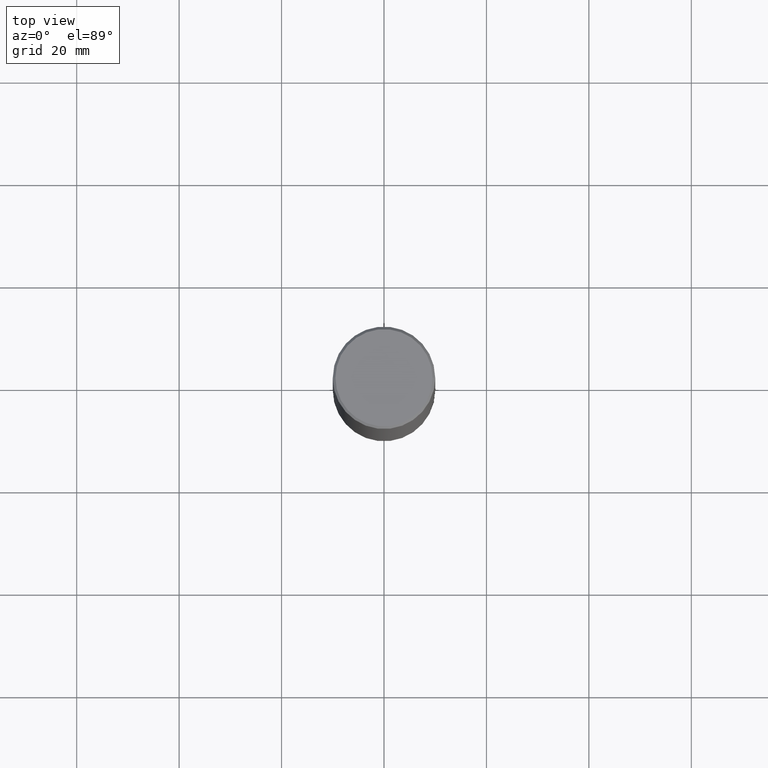
[diagram: clean part render]
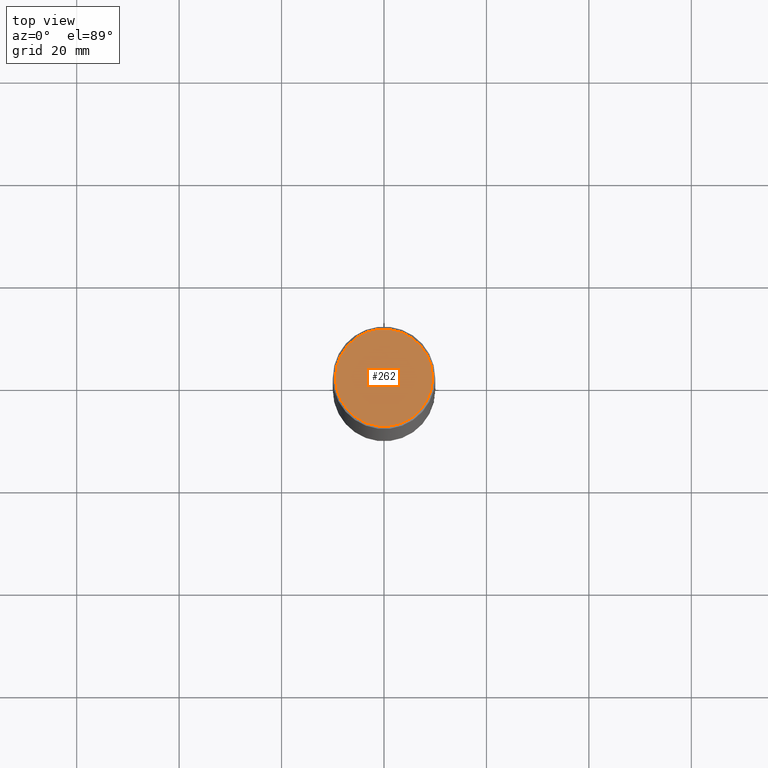
[diagram: same view with one face highlighted and labeled with its STEP entity id]
A machine part, top view. The second image highlights one B-rep face of the part: STEP entity #262.
In plain terms, the highlighted planar face has unit normal (0, -0, -1).
Its self-contained STEP definition (entity closure, byte-faithful):
#26 = FACE_OUTER_BOUND ( 'NONE', #34, .T. ) ;
#34 = EDGE_LOOP ( 'NONE', ( #141, #226 ) ) ;
#39 = VERTEX_POINT ( 'NONE', #360 ) ;
#46 = CARTESIAN_POINT ( 'NONE',  ( -0.3736999999999999211, 2.644447966039789453E-15, 2.262311619753034352E-16 ) ) ;
#85 = CARTESIAN_POINT ( 'NONE',  ( -5.532412495976664402E-45, 7.898818803016371119E-31, 2.262311619753217762E-16 ) ) ;
#93 = CIRCLE ( 'NONE', #108, 0.3736999999999999211 ) ;
#102 = AXIS2_PLACEMENT_3D ( 'NONE', #189, #287, #313 ) ;
#108 = AXIS2_PLACEMENT_3D ( 'NONE', #181, #248, #379 ) ;
#115 = DIRECTION ( 'NONE',  ( -2.445468806185136597E-29, 3.491481338843145583E-15, 1.000000000000000000 ) ) ;
#141 = ORIENTED_EDGE ( 'NONE', *, *, #237, .T. ) ;
#152 = DIRECTION ( 'NONE',  ( 1.000000000000000000, -6.982962677686266711E-15, 4.877734241229876808E-29 ) ) ;
#181 = CARTESIAN_POINT ( 'NONE',  ( -5.532412495976664402E-45, 7.898818803016371119E-31, 2.262311619753217762E-16 ) ) ;
#189 = CARTESIAN_POINT ( 'NONE',  ( 2.609533152651356620E-15, 0.3736999999999999211, -1.191650995338022328E-15 ) ) ;
#222 = PLANE ( 'NONE',  #102 ) ;
#226 = ORIENTED_EDGE ( 'NONE', *, *, #399, .T. ) ;
#231 = CIRCLE ( 'NONE', #386, 0.3736999999999999211 ) ;
#237 = EDGE_CURVE ( 'NONE', #397, #39, #231, .T. ) ;
#248 = DIRECTION ( 'NONE',  ( -2.445468806185136597E-29, 3.491481338843145583E-15, 1.000000000000000000 ) ) ;
#262 = ADVANCED_FACE ( 'NONE', ( #26 ), #222, .F. ) ;
#287 = DIRECTION ( 'NONE',  ( 2.438088387897960049E-29, -3.491481338843145188E-15, -1.000000000000000000 ) ) ;
#313 = DIRECTION ( 'NONE',  ( -1.000000000000000000, 6.982962677686265922E-15, -4.876176775795935793E-29 ) ) ;
#360 = CARTESIAN_POINT ( 'NONE',  ( 0.3736999999999999211, -2.667287895133367964E-15, 2.262311619753402158E-16 ) ) ;
#379 = DIRECTION ( 'NONE',  ( 1.000000000000000000, -6.982962677686266711E-15, 4.877734241229876808E-29 ) ) ;
#386 = AXIS2_PLACEMENT_3D ( 'NONE', #85, #115, #152 ) ;
#397 = VERTEX_POINT ( 'NONE', #46 ) ;
#399 = EDGE_CURVE ( 'NONE', #39, #397, #93, .T. ) ;